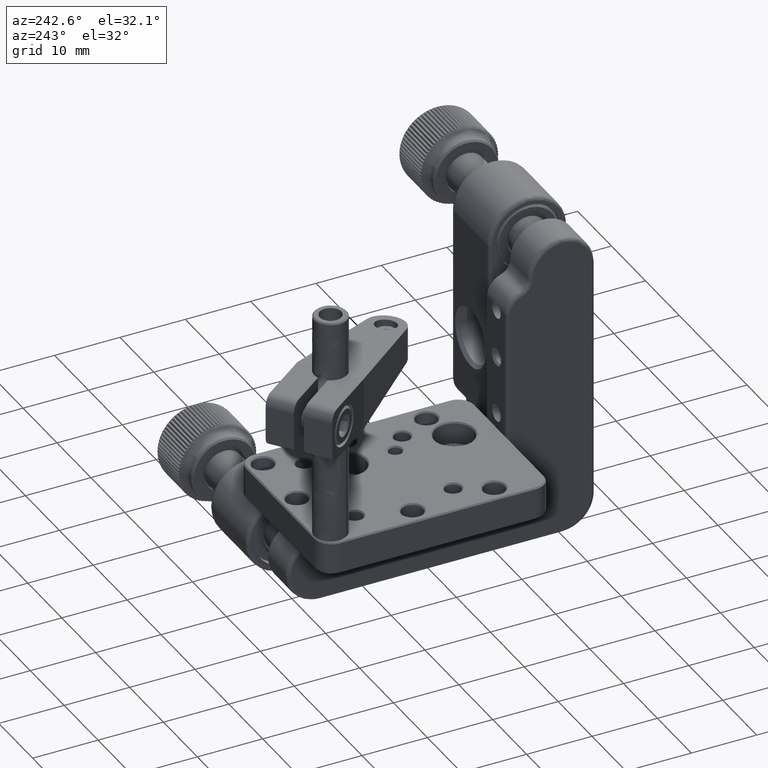
[diagram: clean part render]
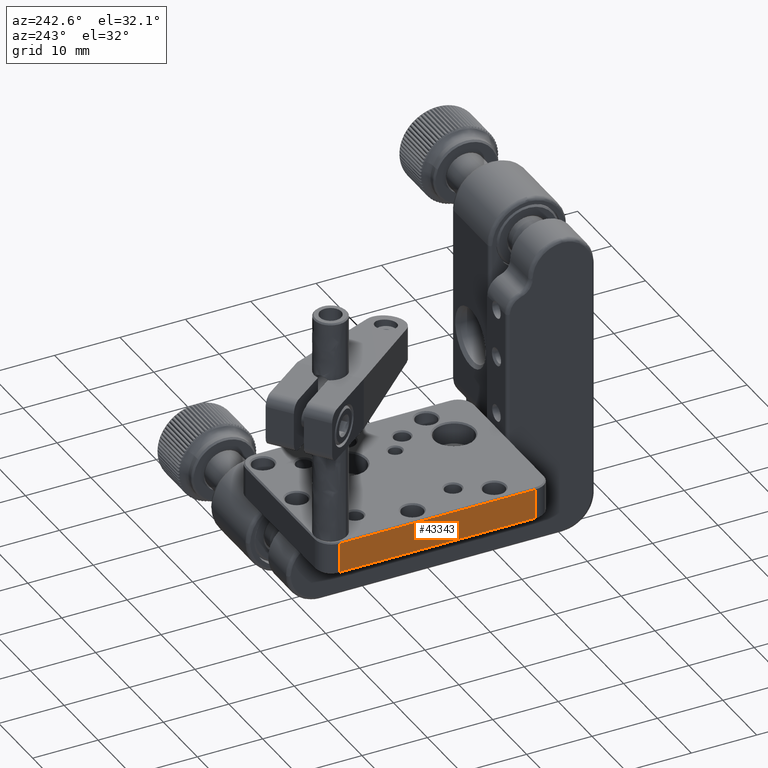
[diagram: same view with one face highlighted and labeled with its STEP entity id]
A machine part, auxiliary view. The second image highlights one B-rep face of the part: STEP entity #43343.
In plain terms, the highlighted planar face has unit normal (1, 0, 0).
Its self-contained STEP definition (entity closure, byte-faithful):
#921 = DIRECTION ( 'NONE',  ( 0.000000000000000000, 1.000000000000000000, 0.000000000000000000 ) ) ;
#3015 = ORIENTED_EDGE ( 'NONE', *, *, #27085, .T. ) ;
#5994 = PLANE ( 'NONE',  #17861 ) ;
#7440 = ORIENTED_EDGE ( 'NONE', *, *, #12796, .T. ) ;
#8323 = CARTESIAN_POINT ( 'NONE',  ( -29.89999999999999503, 23.00000000012022028, -9.799999999999998934 ) ) ;
#8982 = CARTESIAN_POINT ( 'NONE',  ( -29.90000000000000213, 22.99999999903827685, -7.500000000000000888 ) ) ;
#11035 = LINE ( 'NONE', #56609, #35433 ) ;
#12651 = EDGE_CURVE ( 'NONE', #17776, #34604, #11035, .T. ) ;
#12796 = EDGE_CURVE ( 'NONE', #15201, #17776, #39868, .T. ) ;
#13559 = ORIENTED_EDGE ( 'NONE', *, *, #12651, .T. ) ;
#14531 = VECTOR ( 'NONE', #50974, 1000.000000000000000 ) ;
#14930 = FACE_OUTER_BOUND ( 'NONE', #15248, .T. ) ;
#15201 = VERTEX_POINT ( 'NONE', #8323 ) ;
#15248 = EDGE_LOOP ( 'NONE', ( #13559, #28877, #3015, #7440 ) ) ;
#17776 = VERTEX_POINT ( 'NONE', #53908 ) ;
#17861 = AXIS2_PLACEMENT_3D ( 'NONE', #33695, #41745, #921 ) ;
#21253 = VECTOR ( 'NONE', #44620, 1000.000000000000000 ) ;
#22546 = DIRECTION ( 'NONE',  ( 0.000000000000000000, -1.000000000000000000, 0.000000000000000000 ) ) ;
#26248 = CARTESIAN_POINT ( 'NONE',  ( -29.90000000000000213, 22.99999999903827685, -5.200000000000001066 ) ) ;
#26441 = CARTESIAN_POINT ( 'NONE',  ( -29.89999999999999858, 8.000000000000000000, -9.799999999999998934 ) ) ;
#27085 = EDGE_CURVE ( 'NONE', #33754, #15201, #49788, .T. ) ;
#28877 = ORIENTED_EDGE ( 'NONE', *, *, #41441, .F. ) ;
#33695 = CARTESIAN_POINT ( 'NONE',  ( -29.89999999999999858, -6.999999999999999112, -9.799999999999998934 ) ) ;
#33754 = VERTEX_POINT ( 'NONE', #26248 ) ;
#34604 = VERTEX_POINT ( 'NONE', #37858 ) ;
#35433 = VECTOR ( 'NONE', #47351, 1000.000000000000000 ) ;
#36521 = LINE ( 'NONE', #45472, #50156 ) ;
#37858 = CARTESIAN_POINT ( 'NONE',  ( -29.89999999999999503, -7.000000000721294136, -5.200000000000001066 ) ) ;
#39868 = LINE ( 'NONE', #26441, #21253 ) ;
#41441 = EDGE_CURVE ( 'NONE', #33754, #34604, #36521, .T. ) ;
#41745 = DIRECTION ( 'NONE',  ( 1.000000000000000000, 0.000000000000000000, 0.000000000000000000 ) ) ;
#43343 = ADVANCED_FACE ( 'NONE', ( #14930 ), #5994, .F. ) ;
#44620 = DIRECTION ( 'NONE',  ( 0.000000000000000000, -1.000000000000000000, 0.000000000000000000 ) ) ;
#45472 = CARTESIAN_POINT ( 'NONE',  ( -29.89999999999999858, 8.000000000000000000, -5.200000000000001066 ) ) ;
#47351 = DIRECTION ( 'NONE',  ( 0.000000000000000000, 0.000000000000000000, 1.000000000000000000 ) ) ;
#49788 = LINE ( 'NONE', #8982, #14531 ) ;
#50156 = VECTOR ( 'NONE', #22546, 1000.000000000000000 ) ;
#50974 = DIRECTION ( 'NONE',  ( 0.000000000000000000, 0.000000000000000000, -1.000000000000000000 ) ) ;
#53908 = CARTESIAN_POINT ( 'NONE',  ( -29.89999999999999858, -6.999999999759570102, -9.799999999999998934 ) ) ;
#56609 = CARTESIAN_POINT ( 'NONE',  ( -29.89999999999999503, -7.000000000961726698, -7.500000000000000888 ) ) ;